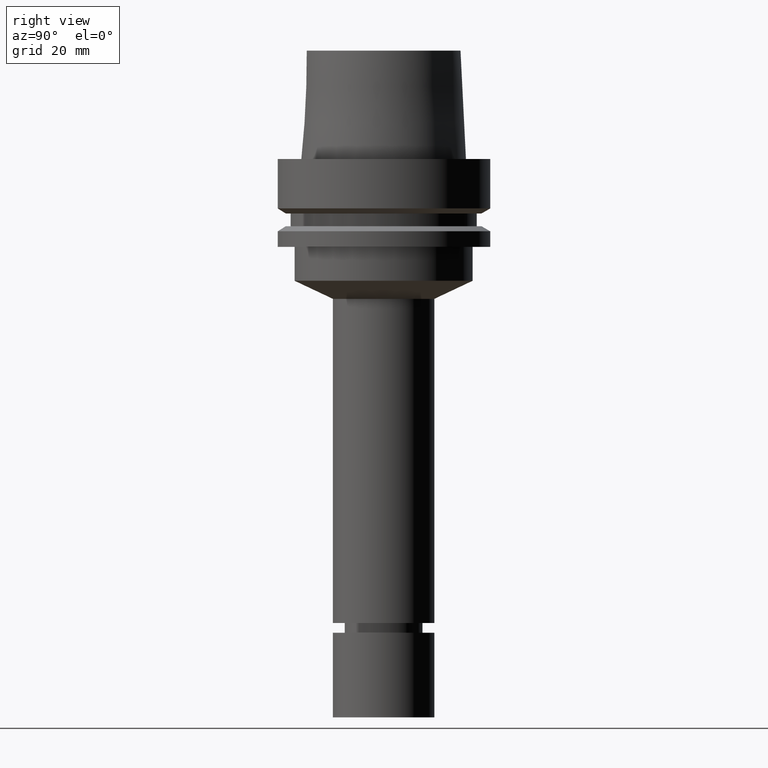
[diagram: clean part render]
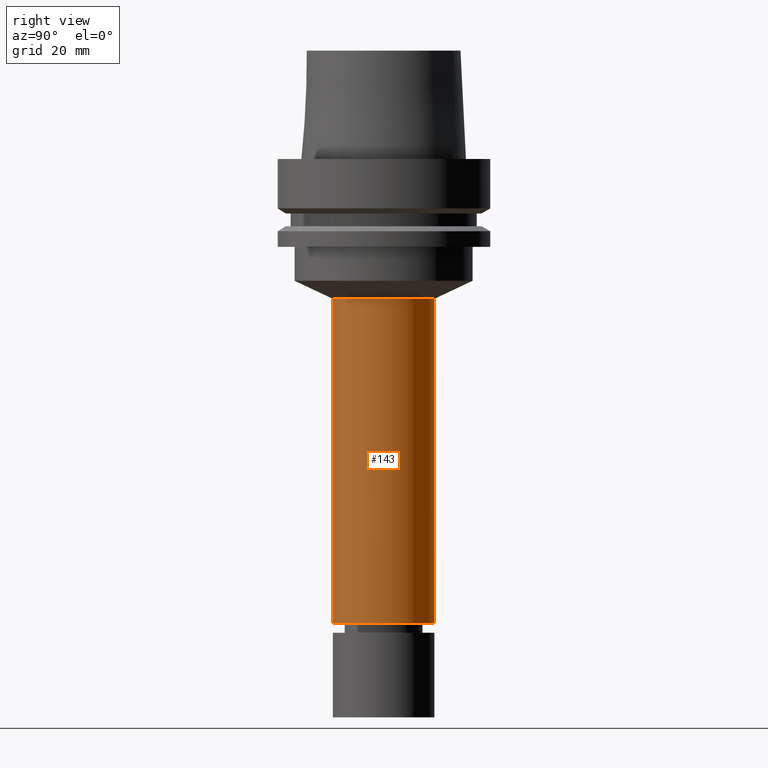
[diagram: same view with one face highlighted and labeled with its STEP entity id]
A machine part, right view. The second image highlights one B-rep face of the part: STEP entity #143.
In plain terms, the highlighted cylindrical surface (bore or boss wall) has radius 15 mm, axis along (-0, -0, 1).
Its self-contained STEP definition (entity closure, byte-faithful):
#143=ADVANCED_FACE('Unnamed[1]',(#315,#316),#317,.T.);
#174=EDGE_CURVE('Unnamed[1]',#363,#363,#364,.T.);
#183=EDGE_CURVE('Unnamed[1]',#375,#375,#376,.T.);
#315=FACE_BOUND('',#530,.T.);
#316=FACE_BOUND('',#531,.T.);
#317=CYLINDRICAL_SURFACE('',#532,15.0);
#363=VERTEX_POINT('',#591);
#364=CIRCLE('',#592,15.0);
#375=VERTEX_POINT('',#606);
#376=CIRCLE('',#607,15.0);
#530=EDGE_LOOP('',(#742));
#531=EDGE_LOOP('',(#743));
#532=AXIS2_PLACEMENT_3D('',#744,#745,#746);
#591=CARTESIAN_POINT('',(8.39495380815506E-015,15.0,-137.099999999999));
#592=AXIS2_PLACEMENT_3D('',#796,#797,#798);
#606=CARTESIAN_POINT('',(2.53072078279922E-015,15.0,-41.32980684));
#607=AXIS2_PLACEMENT_3D('',#806,#807,#808);
#742=ORIENTED_EDGE('',*,*,#183,.F.);
#743=ORIENTED_EDGE('',*,*,#174,.T.);
#744=CARTESIAN_POINT('',(5.46283729547714E-015,1.09256745909543E-014,-89.2149034199997));
#745=DIRECTION('',(-6.12323399573677E-017,-1.22464679914735E-016,1.0));
#746=DIRECTION('',(-1.23259516440783E-032,1.0,1.22464679914735E-016));
#796=CARTESIAN_POINT('',(8.39495380815506E-015,1.67899076163101E-014,-137.099999999999));
#797=DIRECTION('',(-6.12323399573677E-017,-1.22464679914735E-016,1.0));
#798=DIRECTION('',(-1.23259516440783E-032,1.0,1.22464679914735E-016));
#806=CARTESIAN_POINT('',(2.53072078279922E-015,5.06144156559844E-015,-41.32980684));
#807=DIRECTION('',(-6.12323399573677E-017,-1.22464679914735E-016,1.0));
#808=DIRECTION('',(-1.23259516440783E-032,1.0,1.22464679914735E-016));